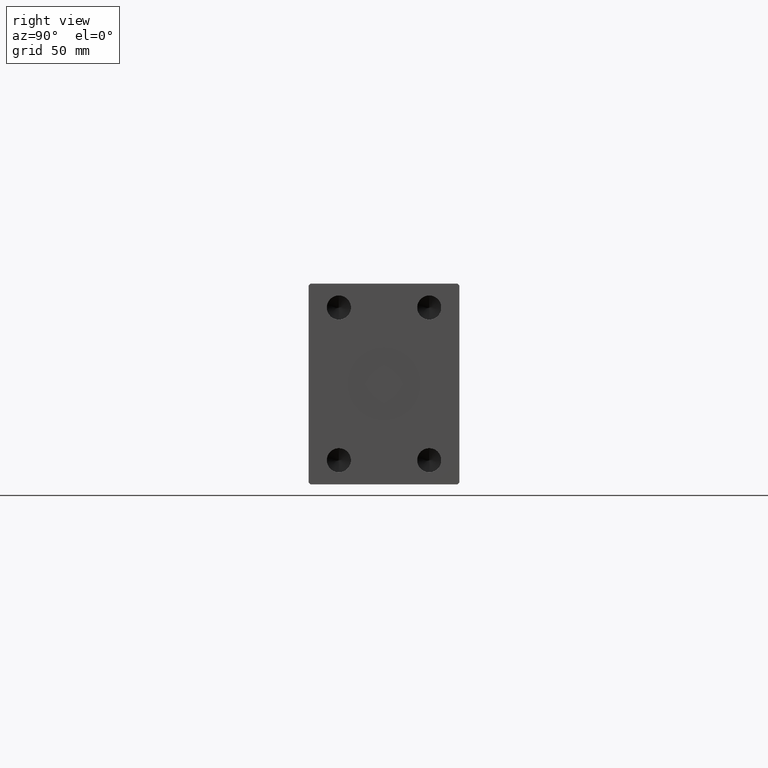
[diagram: clean part render]
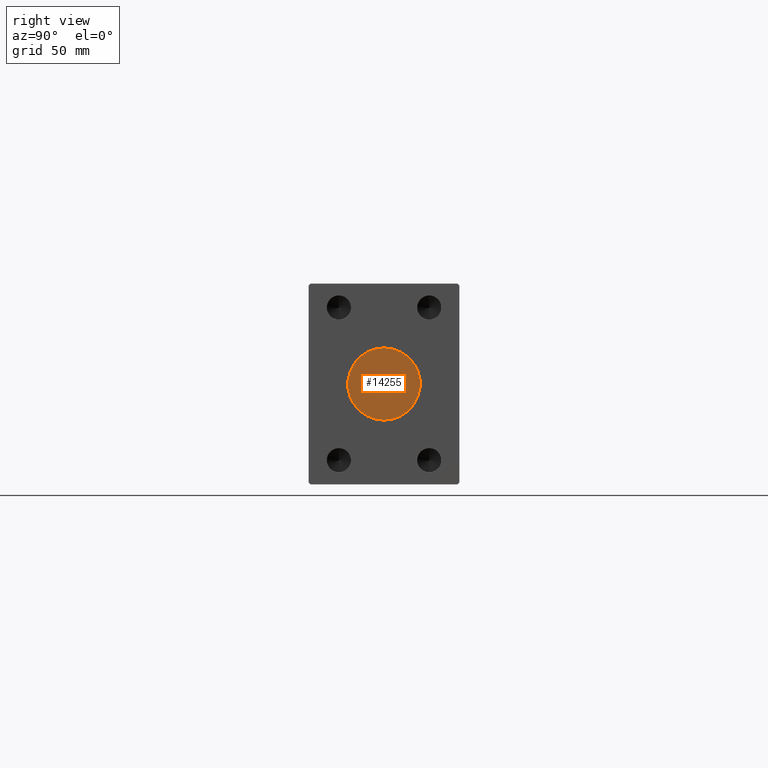
[diagram: same view with one face highlighted and labeled with its STEP entity id]
A machine part, right view. The second image highlights one B-rep face of the part: STEP entity #14255.
In plain terms, the highlighted planar face has unit normal (1, 0, 0).
Its self-contained STEP definition (entity closure, byte-faithful):
#2987 = DIRECTION ( 'NONE',  ( 1.000000000000000000, 0.000000000000000000, 0.000000000000000000 ) ) ;
#4647 = CARTESIAN_POINT ( 'NONE',  ( 301.8000000000000114, 0.000000000000000000, 0.000000000000000000 ) ) ;
#5301 = DIRECTION ( 'NONE',  ( 0.000000000000000000, 0.000000000000000000, -1.000000000000000000 ) ) ;
#6336 = CARTESIAN_POINT ( 'NONE',  ( 301.8000000000000114, 0.000000000000000000, 0.000000000000000000 ) ) ;
#7029 = EDGE_CURVE ( 'NONE', #17360, #21264, #41505, .T. ) ;
#9099 = FACE_OUTER_BOUND ( 'NONE', #41259, .T. ) ;
#11169 = AXIS2_PLACEMENT_3D ( 'NONE', #20015, #19361, #33700 ) ;
#14255 = ADVANCED_FACE ( 'NONE', ( #9099 ), #22769, .T. ) ;
#14790 = ORIENTED_EDGE ( 'NONE', *, *, #42632, .T. ) ;
#17186 = AXIS2_PLACEMENT_3D ( 'NONE', #6336, #2987, #20221 ) ;
#17360 = VERTEX_POINT ( 'NONE', #18335 ) ;
#18335 = CARTESIAN_POINT ( 'NONE',  ( 301.8000000000000114, 2.204364238465235428E-15, 18.00000000000000000 ) ) ;
#19361 = DIRECTION ( 'NONE',  ( 1.000000000000000000, 0.000000000000000000, 0.000000000000000000 ) ) ;
#20015 = CARTESIAN_POINT ( 'NONE',  ( 301.8000000000000114, 0.000000000000000000, 0.000000000000000000 ) ) ;
#20221 = DIRECTION ( 'NONE',  ( 0.000000000000000000, 0.000000000000000000, -1.000000000000000000 ) ) ;
#21264 = VERTEX_POINT ( 'NONE', #39252 ) ;
#22769 = PLANE ( 'NONE',  #43727 ) ;
#24069 = ORIENTED_EDGE ( 'NONE', *, *, #7029, .T. ) ;
#33700 = DIRECTION ( 'NONE',  ( 0.000000000000000000, 0.000000000000000000, -1.000000000000000000 ) ) ;
#34791 = CIRCLE ( 'NONE', #11169, 18.00000000000000000 ) ;
#36008 = DIRECTION ( 'NONE',  ( 1.000000000000000000, 0.000000000000000000, 0.000000000000000000 ) ) ;
#39252 = CARTESIAN_POINT ( 'NONE',  ( 301.8000000000000114, 0.000000000000000000, -18.00000000000000000 ) ) ;
#41259 = EDGE_LOOP ( 'NONE', ( #14790, #24069 ) ) ;
#41505 = CIRCLE ( 'NONE', #17186, 18.00000000000000000 ) ;
#42632 = EDGE_CURVE ( 'NONE', #21264, #17360, #34791, .T. ) ;
#43727 = AXIS2_PLACEMENT_3D ( 'NONE', #4647, #36008, #5301 ) ;